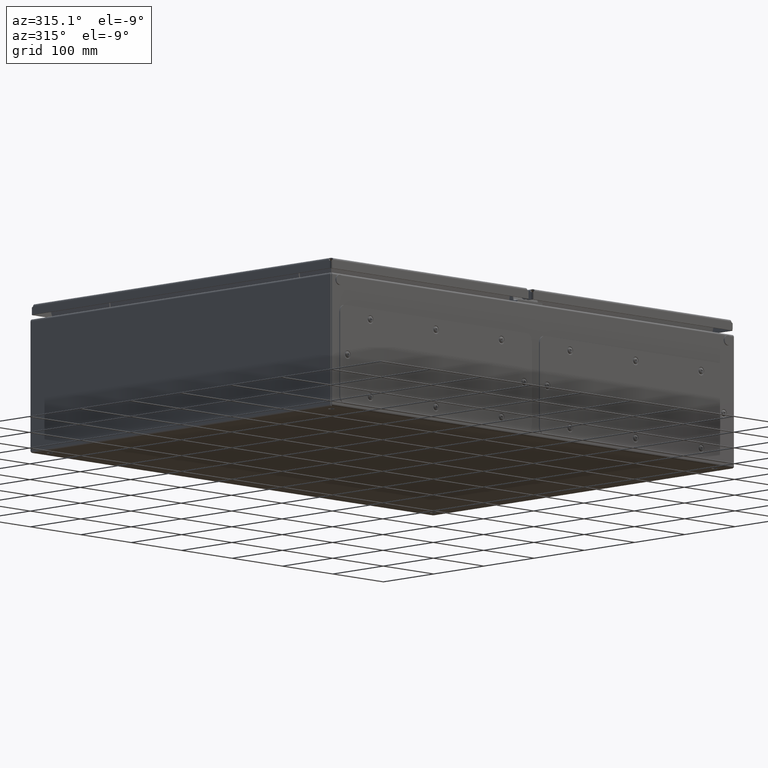
[diagram: clean part render]
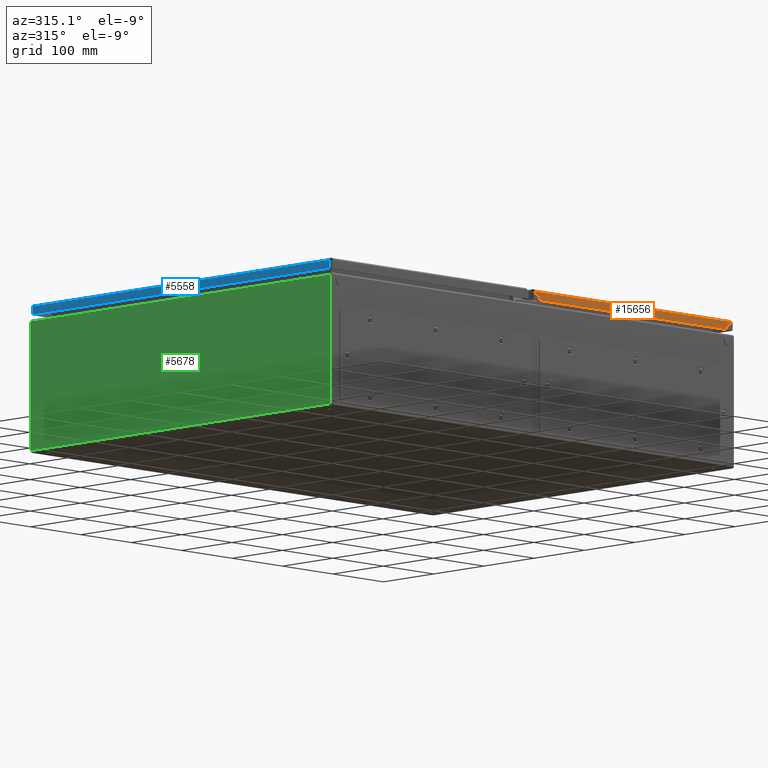
[diagram: same view with three faces highlighted in distinct colors, each labeled with its STEP entity id]
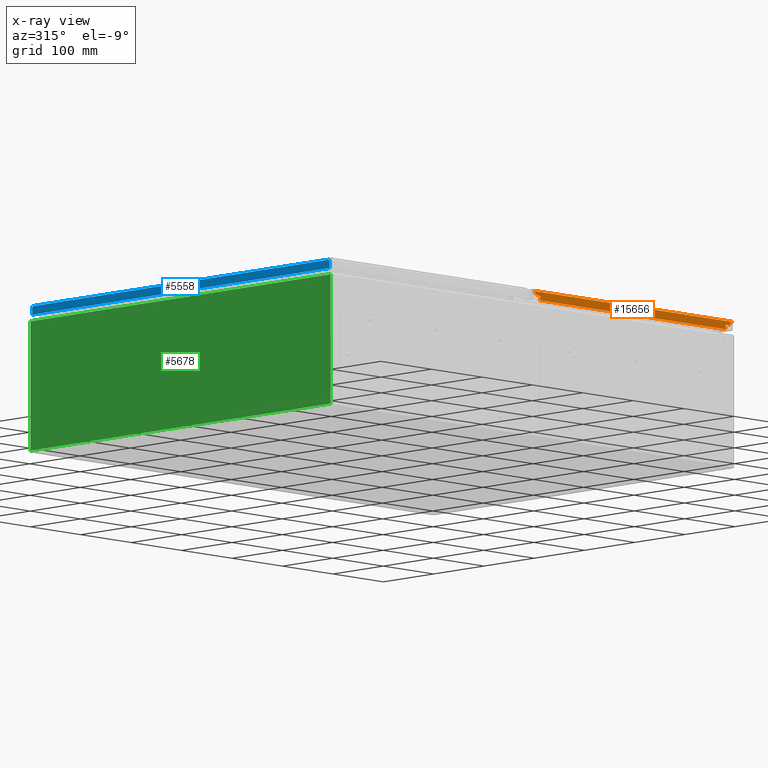
[diagram: x-ray of the same camera — body ghosted, the three highlighted faces saturated]
A machine part, auxiliary view with three faces highlighted in distinct colors.
The next image is the same camera in x-ray (body ghosted, the three faces saturated) — at least one of them is partly hidden behind the body in this view.
Their STEP definitions:

[orange] entity #15656 — the highlighted planar face has unit normal (-0, 1, 0).
#190 = CARTESIAN_POINT ( 'NONE',  ( -211.2500000000000000, -298.5000000000001100, 14.99999999999984700 ) ) ;
#8132 = EDGE_CURVE ( 'NONE', #33040, #32637, #18246, .T. ) ;
#8370 = EDGE_CURVE ( 'NONE', #32997, #32723, #18515, .T. ) ;
#8526 = EDGE_CURVE ( 'NONE', #33040, #33464, #17648, .T. ) ;
#8655 = EDGE_CURVE ( 'NONE', #33323, #32756, #18537, .T. ) ;
#8844 = EDGE_CURVE ( 'NONE', #32637, #33074, #46299, .T. ) ;
#8913 = EDGE_CURVE ( 'NONE', #33323, #32997, #45481, .T. ) ;
#9064 = EDGE_CURVE ( 'NONE', #33093, #33464, #45907, .T. ) ;
#9282 = EDGE_CURVE ( 'NONE', #32723, #32739, #44724, .T. ) ;
#9352 = EDGE_CURVE ( 'NONE', #33093, #32739, #44209, .T. ) ;
#9872 = EDGE_CURVE ( 'NONE', #33074, #32756, #44875, .T. ) ;
#12522 = DIRECTION ( 'NONE',  ( 3.849162447856781600E-015, 3.491481338843134500E-015, 1.000000000000000000 ) ) ;
#12610 = CARTESIAN_POINT ( 'NONE',  ( 184.2500000000024700, -298.5000000000000600, 8.250000000000145700 ) ) ;
#15656 = ADVANCED_FACE ( 'NONE', ( #38059 ), #59499, .F. ) ;
#16857 = AXIS2_PLACEMENT_3D ( 'NONE', #30534, #31166, #30820 ) ;
#17169 = AXIS2_PLACEMENT_3D ( 'NONE', #20630, #20410, #21131 ) ;
#17251 = AXIS2_PLACEMENT_3D ( 'NONE', #190, #59374, #59647 ) ;
#17648 = CIRCLE ( 'NONE', #17169, 3.000000000000002700 ) ;
#18242 = VECTOR ( 'NONE', #39318, 1000.000000000000100 ) ;
#18246 = LINE ( 'NONE', #39053, #18242 ) ;
#18515 = LINE ( 'NONE', #21310, #18653 ) ;
#18537 = LINE ( 'NONE', #20527, #18574 ) ;
#18574 = VECTOR ( 'NONE', #20513, 1000.000000000000000 ) ;
#18653 = VECTOR ( 'NONE', #20251, 1000.000000000000000 ) ;
#20251 = DIRECTION ( 'NONE',  ( -1.000000000000000000, -2.627746803846820800E-016, -8.486648936867117200E-015 ) ) ;
#20410 = DIRECTION ( 'NONE',  ( 2.627746803846524500E-016, -1.000000000000000000, 3.491481338843133400E-015 ) ) ;
#20513 = DIRECTION ( 'NONE',  ( 1.000000000000000000, 2.627746803846533800E-016, 2.627746803846524500E-016 ) ) ;
#20527 = CARTESIAN_POINT ( 'NONE',  ( -211.2500000000000000, -298.5000000000001100, 14.99999999999984700 ) ) ;
#20630 = CARTESIAN_POINT ( 'NONE',  ( 197.7500000000013100, -298.5000000000000600, 1.500000000001278100 ) ) ;
#20992 = DIRECTION ( 'NONE',  ( -1.000000000000000000, -2.627746803846533800E-016, -2.627746803846524500E-016 ) ) ;
#21131 = DIRECTION ( 'NONE',  ( -1.000000000000000000, 0.0000000000000000000, -2.891205793294675900E-016 ) ) ;
#21162 = CARTESIAN_POINT ( 'NONE',  ( 191.0000000000023900, -298.5000000000000600, 8.250000000000145700 ) ) ;
#21310 = CARTESIAN_POINT ( 'NONE',  ( -191.0000000000000600, -298.5000000000001700, 8.249999999999813500 ) ) ;
#30247 = CARTESIAN_POINT ( 'NONE',  ( -197.7500000000000600, -298.5000000000001700, 1.499999999999834800 ) ) ;
#30534 = CARTESIAN_POINT ( 'NONE',  ( -197.7500000000000600, -298.5000000000001700, 1.499999999999834800 ) ) ;
#30820 = DIRECTION ( 'NONE',  ( 1.000000000000000000, 0.0000000000000000000, 2.891205793294675900E-016 ) ) ;
#31162 = DIRECTION ( 'NONE',  ( -0.7071067811865489100, -2.654659889506376600E-015, -0.7071067811865462400 ) ) ;
#31166 = DIRECTION ( 'NONE',  ( 2.627746803846524500E-016, -1.000000000000000000, 3.491481338843133400E-015 ) ) ;
#32637 = VERTEX_POINT ( 'NONE', #51336 ) ;
#32723 = VERTEX_POINT ( 'NONE', #51724 ) ;
#32739 = VERTEX_POINT ( 'NONE', #50845 ) ;
#32756 = VERTEX_POINT ( 'NONE', #50302 ) ;
#32997 = VERTEX_POINT ( 'NONE', #51436 ) ;
#33040 = VERTEX_POINT ( 'NONE', #49694 ) ;
#33074 = VERTEX_POINT ( 'NONE', #49829 ) ;
#33093 = VERTEX_POINT ( 'NONE', #50179 ) ;
#33323 = VERTEX_POINT ( 'NONE', #47299 ) ;
#33464 = VERTEX_POINT ( 'NONE', #47410 ) ;
#38059 = FACE_OUTER_BOUND ( 'NONE', #41850, .T. ) ;
#39053 = CARTESIAN_POINT ( 'NONE',  ( 197.7500000000013100, -298.5000000000000600, 1.500000000001278100 ) ) ;
#39318 = DIRECTION ( 'NONE',  ( -0.7071067811865506800, 2.283040372658138700E-015, 0.7071067811865443500 ) ) ;
#41370 = ORIENTED_EDGE ( 'NONE', *, *, #8370, .T. ) ;
#41850 = EDGE_LOOP ( 'NONE', ( #44714, #45672, #45906, #42323, #45184, #43955, #45690, #45152, #41370, #45372 ) ) ;
#42323 = ORIENTED_EDGE ( 'NONE', *, *, #8132, .T. ) ;
#43955 = ORIENTED_EDGE ( 'NONE', *, *, #9872, .T. ) ;
#44209 = CIRCLE ( 'NONE', #16857, 3.000000000000002700 ) ;
#44403 = VECTOR ( 'NONE', #31162, 999.9999999999998900 ) ;
#44714 = ORIENTED_EDGE ( 'NONE', *, *, #9352, .F. ) ;
#44724 = LINE ( 'NONE', #30247, #44403 ) ;
#44845 = VECTOR ( 'NONE', #20992, 1000.000000000000000 ) ;
#44875 = LINE ( 'NONE', #12610, #46501 ) ;
#45152 = ORIENTED_EDGE ( 'NONE', *, *, #8913, .T. ) ;
#45184 = ORIENTED_EDGE ( 'NONE', *, *, #8844, .T. ) ;
#45372 = ORIENTED_EDGE ( 'NONE', *, *, #9282, .T. ) ;
#45481 = LINE ( 'NONE', #54046, #46106 ) ;
#45672 = ORIENTED_EDGE ( 'NONE', *, *, #9064, .T. ) ;
#45690 = ORIENTED_EDGE ( 'NONE', *, *, #8655, .F. ) ;
#45849 = VECTOR ( 'NONE', #54082, 1000.000000000000000 ) ;
#45906 = ORIENTED_EDGE ( 'NONE', *, *, #8526, .F. ) ;
#45907 = LINE ( 'NONE', #53749, #45849 ) ;
#46106 = VECTOR ( 'NONE', #53777, 1000.000000000000000 ) ;
#46299 = LINE ( 'NONE', #21162, #44845 ) ;
#46501 = VECTOR ( 'NONE', #12522, 1000.000000000000000 ) ;
#47299 = CARTESIAN_POINT ( 'NONE',  ( -184.2499999999999100, -298.5000000000001100, 14.99999999999984700 ) ) ;
#47410 = CARTESIAN_POINT ( 'NONE',  ( 195.1519237886472500, -298.5000000000000600, 3.000000000000002700 ) ) ;
#49694 = CARTESIAN_POINT ( 'NONE',  ( 195.6286796564416500, -298.5000000000000600, 3.621320343560885400 ) ) ;
#49829 = CARTESIAN_POINT ( 'NONE',  ( 184.2500000000024700, -298.5000000000000600, 8.250000000000145700 ) ) ;
#50179 = CARTESIAN_POINT ( 'NONE',  ( -195.1519237886468500, -298.5000000000001700, 3.000000000000002700 ) ) ;
#50302 = CARTESIAN_POINT ( 'NONE',  ( 184.2500000000025000, -298.5000000000000600, 14.99999999999995700 ) ) ;
#50845 = CARTESIAN_POINT ( 'NONE',  ( -195.6286796564404500, -298.5000000000001700, 3.621320343559442100 ) ) ;
#51336 = CARTESIAN_POINT ( 'NONE',  ( 191.0000000000023900, -298.5000000000000600, 8.250000000000145700 ) ) ;
#51436 = CARTESIAN_POINT ( 'NONE',  ( -184.2499999999999100, -298.5000000000001700, 8.249999999999868500 ) ) ;
#51724 = CARTESIAN_POINT ( 'NONE',  ( -191.0000000000000600, -298.5000000000001700, 8.249999999999813500 ) ) ;
#53749 = CARTESIAN_POINT ( 'NONE',  ( -211.2500000000000000, -298.5000000000001700, 3.000000000000002700 ) ) ;
#53777 = DIRECTION ( 'NONE',  ( 2.627746803846533800E-016, -3.491481338843133400E-015, -1.000000000000000000 ) ) ;
#54046 = CARTESIAN_POINT ( 'NONE',  ( -184.2499999999999100, -298.5000000000001700, 8.249999999999868500 ) ) ;
#54082 = DIRECTION ( 'NONE',  ( 1.000000000000000000, 2.627746803846524500E-016, 0.0000000000000000000 ) ) ;
#59374 = DIRECTION ( 'NONE',  ( -2.627746803846524500E-016, 1.000000000000000000, -3.491481338843133400E-015 ) ) ;
#59499 = PLANE ( 'NONE',  #17251 ) ;
#59647 = DIRECTION ( 'NONE',  ( 1.000000000000000000, 2.627746803846533800E-016, 2.627746803846524500E-016 ) ) ;

[blue] entity #5558 — the highlighted planar face has unit normal (1, 0, 0).
#2382 = DIRECTION ( 'NONE',  ( 0.0000000000000000000, -1.000000000000000000, -0.0000000000000000000 ) ) ;
#2496 = CARTESIAN_POINT ( 'NONE',  ( -207.7500000000000600, -310.5000000000000000, 3.000000000000002700 ) ) ;
#4050 = LINE ( 'NONE', #39923, #5214 ) ;
#4260 = VECTOR ( 'NONE', #2382, 1000.000000000000000 ) ;
#4745 = LINE ( 'NONE', #2496, #4260 ) ;
#5214 = VECTOR ( 'NONE', #39925, 1000.000000000000000 ) ;
#5558 = ADVANCED_FACE ( 'NONE', ( #50676 ), #32022, .F. ) ;
#5981 = EDGE_CURVE ( 'NONE', #38032, #32719, #4745, .T. ) ;
#6268 = EDGE_CURVE ( 'NONE', #12993, #43876, #4050, .T. ) ;
#12993 = VERTEX_POINT ( 'NONE', #59333 ) ;
#14369 = LINE ( 'NONE', #47653, #15371 ) ;
#14700 = CIRCLE ( 'NONE', #27773, 2.999999999999994700 ) ;
#15127 = VECTOR ( 'NONE', #47211, 1000.000000000000000 ) ;
#15203 = LINE ( 'NONE', #47171, #15127 ) ;
#15251 = CIRCLE ( 'NONE', #27789, 2.999999999999994700 ) ;
#15371 = VECTOR ( 'NONE', #47649, 1000.000000000000000 ) ;
#17908 = VERTEX_POINT ( 'NONE', #47034 ) ;
#20045 = AXIS2_PLACEMENT_3D ( 'NONE', #31939, #31819, #31437 ) ;
#22425 = EDGE_LOOP ( 'NONE', ( #29254, #39686, #39750, #28990, #29846, #28933 ) ) ;
#27773 = AXIS2_PLACEMENT_3D ( 'NONE', #47189, #47183, #47182 ) ;
#27789 = AXIS2_PLACEMENT_3D ( 'NONE', #48551, #48583, #48580 ) ;
#28933 = ORIENTED_EDGE ( 'NONE', *, *, #56628, .T. ) ;
#28990 = ORIENTED_EDGE ( 'NONE', *, *, #6268, .F. ) ;
#29254 = ORIENTED_EDGE ( 'NONE', *, *, #56566, .T. ) ;
#29846 = ORIENTED_EDGE ( 'NONE', *, *, #56661, .F. ) ;
#31437 = DIRECTION ( 'NONE',  ( -3.491481338843133400E-015, 0.0000000000000000000, -1.000000000000000000 ) ) ;
#31819 = DIRECTION ( 'NONE',  ( 1.000000000000000000, 0.0000000000000000000, -3.491481338843133400E-015 ) ) ;
#31939 = CARTESIAN_POINT ( 'NONE',  ( -207.7500000000000000, -310.5000000000000000, 14.99999999999993100 ) ) ;
#32022 = PLANE ( 'NONE',  #20045 ) ;
#32719 = VERTEX_POINT ( 'NONE', #51476 ) ;
#32915 = VERTEX_POINT ( 'NONE', #50894 ) ;
#38032 = VERTEX_POINT ( 'NONE', #47409 ) ;
#39686 = ORIENTED_EDGE ( 'NONE', *, *, #5981, .T. ) ;
#39750 = ORIENTED_EDGE ( 'NONE', *, *, #56637, .F. ) ;
#39923 = CARTESIAN_POINT ( 'NONE',  ( -207.7500000000000000, -295.5000000000001700, 14.99999999999993100 ) ) ;
#39925 = DIRECTION ( 'NONE',  ( -3.491481338843133400E-015, 2.659216825449476500E-016, -1.000000000000000000 ) ) ;
#43876 = VERTEX_POINT ( 'NONE', #47374 ) ;
#47034 = CARTESIAN_POINT ( 'NONE',  ( -207.7500000000000600, 295.4999999999998900, 4.098076211353246700 ) ) ;
#47171 = CARTESIAN_POINT ( 'NONE',  ( -207.7500000000000000, 295.4999999999998900, 14.99999999999984700 ) ) ;
#47182 = DIRECTION ( 'NONE',  ( 0.0000000000000000000, 0.0000000000000000000, -1.000000000000000000 ) ) ;
#47183 = DIRECTION ( 'NONE',  ( -1.000000000000000000, -0.0000000000000000000, 3.491481338843133400E-015 ) ) ;
#47189 = CARTESIAN_POINT ( 'NONE',  ( -207.7500000000000600, -297.0000000000000000, 1.500000000000001300 ) ) ;
#47211 = DIRECTION ( 'NONE',  ( -3.491481338843133400E-015, -1.329608412724738500E-016, -1.000000000000000000 ) ) ;
#47374 = CARTESIAN_POINT ( 'NONE',  ( -207.7500000000000600, -295.5000000000001700, 4.098076211353412800 ) ) ;
#47409 = CARTESIAN_POINT ( 'NONE',  ( -207.7500000000000600, 294.4019237886466800, 3.000000000000002700 ) ) ;
#47649 = DIRECTION ( 'NONE',  ( 0.0000000000000000000, -1.000000000000000000, -0.0000000000000000000 ) ) ;
#47653 = CARTESIAN_POINT ( 'NONE',  ( -207.7500000000000000, 310.5000000000000000, 14.99999999999993100 ) ) ;
#48551 = CARTESIAN_POINT ( 'NONE',  ( -207.7500000000000600, 297.0000000000000000, 1.500000000000001300 ) ) ;
#48580 = DIRECTION ( 'NONE',  ( 0.0000000000000000000, 0.0000000000000000000, -1.000000000000000000 ) ) ;
#48583 = DIRECTION ( 'NONE',  ( 1.000000000000000000, 0.0000000000000000000, -3.491481338843133400E-015 ) ) ;
#50676 = FACE_OUTER_BOUND ( 'NONE', #22425, .T. ) ;
#50894 = CARTESIAN_POINT ( 'NONE',  ( -207.7500000000000000, 295.4999999999998300, 14.99999999999993100 ) ) ;
#51476 = CARTESIAN_POINT ( 'NONE',  ( -207.7500000000000600, -294.4019237886466800, 3.000000000000002700 ) ) ;
#56566 = EDGE_CURVE ( 'NONE', #17908, #38032, #15251, .T. ) ;
#56628 = EDGE_CURVE ( 'NONE', #32915, #17908, #15203, .T. ) ;
#56637 = EDGE_CURVE ( 'NONE', #43876, #32719, #14700, .T. ) ;
#56661 = EDGE_CURVE ( 'NONE', #32915, #12993, #14369, .T. ) ;
#59333 = CARTESIAN_POINT ( 'NONE',  ( -207.7500000000000000, -295.5000000000002800, 14.99999999999993100 ) ) ;

[green] entity #5678 — the highlighted planar face has unit normal (-1, -0, 0).
#5678 = ADVANCED_FACE ( 'NONE', ( #49989 ), #11344, .T. ) ;
#11344 = PLANE ( 'NONE',  #19447 ) ;
#11345 = CARTESIAN_POINT ( 'NONE',  ( -400.0000000000019900, 4283.500000000003600, 188.5000000000000000 ) ) ;
#11363 = DIRECTION ( 'NONE',  ( -1.000000000000000000, -3.216245299353273200E-016, 0.0000000000000000000 ) ) ;
#11365 = DIRECTION ( 'NONE',  ( 0.0000000000000000000, -0.0000000000000000000, -1.000000000000000000 ) ) ;
#14374 = LINE ( 'NONE', #48964, #14607 ) ;
#14607 = VECTOR ( 'NONE', #48962, 1000.000000000000000 ) ;
#14991 = LINE ( 'NONE', #47958, #15051 ) ;
#15051 = VECTOR ( 'NONE', #47956, 1000.000000000000000 ) ;
#15084 = LINE ( 'NONE', #48328, #15474 ) ;
#15118 = CIRCLE ( 'NONE', #27659, 5.000000000006499700 ) ;
#15225 = LINE ( 'NONE', #47894, #15252 ) ;
#15252 = VECTOR ( 'NONE', #47891, 1000.000000000000000 ) ;
#15474 = VECTOR ( 'NONE', #48330, 1000.000000000000000 ) ;
#17656 = VERTEX_POINT ( 'NONE', #46807 ) ;
#17899 = VERTEX_POINT ( 'NONE', #47033 ) ;
#18770 = VERTEX_POINT ( 'NONE', #46201 ) ;
#18913 = VERTEX_POINT ( 'NONE', #49691 ) ;
#18915 = VERTEX_POINT ( 'NONE', #50685 ) ;
#19116 = VERTEX_POINT ( 'NONE', #50244 ) ;
#19447 = AXIS2_PLACEMENT_3D ( 'NONE', #11345, #11363, #11365 ) ;
#22400 = EDGE_LOOP ( 'NONE', ( #39693, #22758, #22757, #23389, #23353, #23179 ) ) ;
#22757 = ORIENTED_EDGE ( 'NONE', *, *, #56680, .T. ) ;
#22758 = ORIENTED_EDGE ( 'NONE', *, *, #56364, .T. ) ;
#23179 = ORIENTED_EDGE ( 'NONE', *, *, #56549, .T. ) ;
#23353 = ORIENTED_EDGE ( 'NONE', *, *, #56944, .T. ) ;
#23389 = ORIENTED_EDGE ( 'NONE', *, *, #56313, .T. ) ;
#27659 = AXIS2_PLACEMENT_3D ( 'NONE', #48297, #48300, #48302 ) ;
#27692 = AXIS2_PLACEMENT_3D ( 'NONE', #48494, #48472, #48474 ) ;
#37720 = CIRCLE ( 'NONE', #27692, 4.999999999972971000 ) ;
#39693 = ORIENTED_EDGE ( 'NONE', *, *, #56544, .T. ) ;
#46201 = CARTESIAN_POINT ( 'NONE',  ( -400.0000000000006800, 298.4992928932288700, 3.000000000000002700 ) ) ;
#46807 = CARTESIAN_POINT ( 'NONE',  ( -400.0000000000004500, -298.4992928932186400, 3.000000000000002700 ) ) ;
#47033 = CARTESIAN_POINT ( 'NONE',  ( -400.0000000000006800, 298.4744118324703700, 187.0000000000000000 ) ) ;
#47891 = DIRECTION ( 'NONE',  ( -0.0000000000000000000, 0.0000000000000000000, 1.000000000000000000 ) ) ;
#47894 = CARTESIAN_POINT ( 'NONE',  ( -400.0000000000004500, -298.4992928932186400, 188.5000000000000000 ) ) ;
#47956 = DIRECTION ( 'NONE',  ( 3.216245299353273200E-016, -1.000000000000000000, 0.0000000000000000000 ) ) ;
#47958 = CARTESIAN_POINT ( 'NONE',  ( -400.0000000000019900, 4283.500000000003600, 3.000000000000002700 ) ) ;
#48297 = CARTESIAN_POINT ( 'NONE',  ( -400.0000000000006800, 293.4992928932222200, 186.5018117420097500 ) ) ;
#48300 = DIRECTION ( 'NONE',  ( -1.000000000000000000, -3.216245299353273200E-016, 0.0000000000000000000 ) ) ;
#48302 = DIRECTION ( 'NONE',  ( 0.0000000000000000000, -1.000000000000000000, 0.0000000000000000000 ) ) ;
#48328 = CARTESIAN_POINT ( 'NONE',  ( -399.9999999999993700, -3283.492221825456000, 187.0000000000000000 ) ) ;
#48330 = DIRECTION ( 'NONE',  ( -3.719348926639818200E-016, 1.000000000000000000, 0.0000000000000000000 ) ) ;
#48472 = DIRECTION ( 'NONE',  ( -1.000000000000000000, -3.216245299353273200E-016, 0.0000000000000000000 ) ) ;
#48474 = DIRECTION ( 'NONE',  ( 0.0000000000000000000, -1.000000000000000000, 0.0000000000000000000 ) ) ;
#48494 = CARTESIAN_POINT ( 'NONE',  ( -400.0000000000004500, -293.4992928932455800, 186.5018117420097800 ) ) ;
#48962 = DIRECTION ( 'NONE',  ( 0.0000000000000000000, -0.0000000000000000000, -1.000000000000000000 ) ) ;
#48964 = CARTESIAN_POINT ( 'NONE',  ( -400.0000000000006800, 298.4992928932288700, 188.5000000000000000 ) ) ;
#49691 = CARTESIAN_POINT ( 'NONE',  ( -400.0000000000004500, -298.4992928932185200, 186.5018117420097800 ) ) ;
#49989 = FACE_OUTER_BOUND ( 'NONE', #22400, .T. ) ;
#50244 = CARTESIAN_POINT ( 'NONE',  ( -400.0000000000004500, -298.4744118324599600, 187.0000000000000000 ) ) ;
#50685 = CARTESIAN_POINT ( 'NONE',  ( -400.0000000000006800, 298.4992928932288700, 186.5018117420097500 ) ) ;
#56313 = EDGE_CURVE ( 'NONE', #17656, #18913, #15225, .T. ) ;
#56364 = EDGE_CURVE ( 'NONE', #18915, #18770, #14374, .T. ) ;
#56544 = EDGE_CURVE ( 'NONE', #17899, #18915, #15118, .T. ) ;
#56549 = EDGE_CURVE ( 'NONE', #19116, #17899, #15084, .T. ) ;
#56680 = EDGE_CURVE ( 'NONE', #18770, #17656, #14991, .T. ) ;
#56944 = EDGE_CURVE ( 'NONE', #18913, #19116, #37720, .T. ) ;